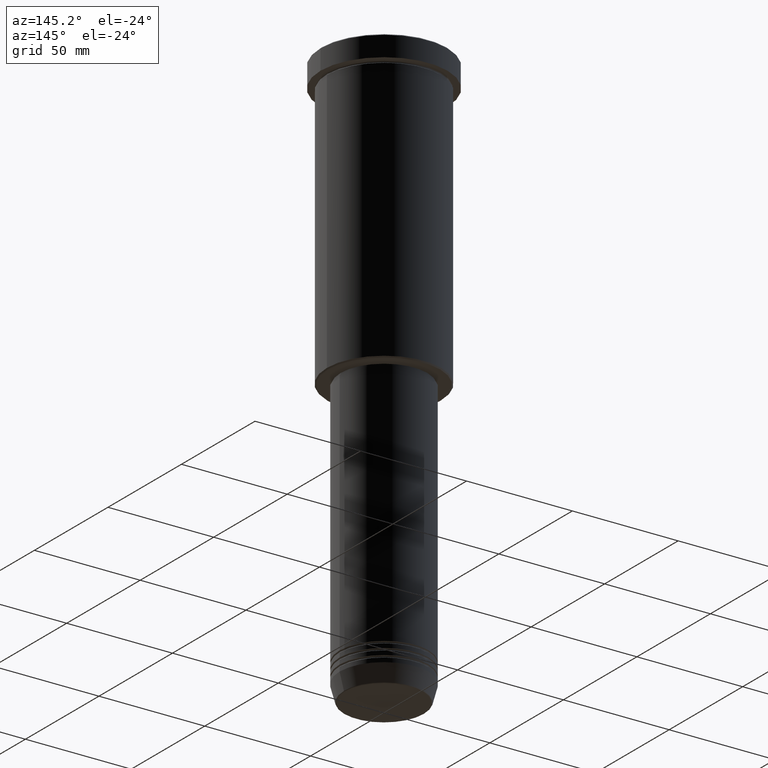
[diagram: clean part render]
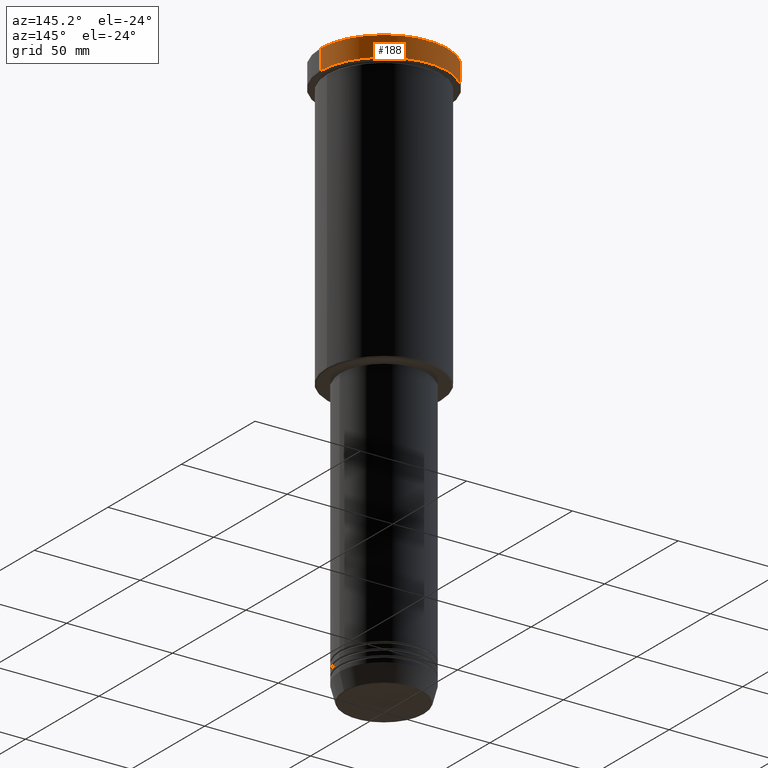
[diagram: same view with one face highlighted and labeled with its STEP entity id]
A machine part, auxiliary view. The second image highlights one B-rep face of the part: STEP entity #188.
In plain terms, the highlighted cylindrical surface (partial cylindrical patch) has radius 30 mm, axis along (-0, -0, 1).
Its self-contained STEP definition (entity closure, byte-faithful):
#23 = VERTEX_POINT ( 'NONE', #912 ) ;
#59 = CYLINDRICAL_SURFACE ( 'NONE', #1078, 30.00000000000000000 ) ;
#75 = CARTESIAN_POINT ( 'NONE',  ( 30.00000000000000000, 0.000000000000000000, -0.4999999999999796274 ) ) ;
#90 = EDGE_LOOP ( 'NONE', ( #921, #135, #847, #518 ) ) ;
#134 = DIRECTION ( 'NONE',  ( 1.000000000000000000, 0.000000000000000000, 0.000000000000000000 ) ) ;
#135 = ORIENTED_EDGE ( 'NONE', *, *, #246, .T. ) ;
#188 = ADVANCED_FACE ( 'NONE', ( #1123 ), #59, .T. ) ;
#246 = EDGE_CURVE ( 'NONE', #639, #23, #615, .T. ) ;
#309 = DIRECTION ( 'NONE',  ( -0.000000000000000000, -0.000000000000000000, 1.000000000000000000 ) ) ;
#312 = DIRECTION ( 'NONE',  ( -0.000000000000000000, -0.000000000000000000, 1.000000000000000000 ) ) ;
#357 = CARTESIAN_POINT ( 'NONE',  ( 30.00000000000000000, 0.000000000000000000, 0.000000000000000000 ) ) ;
#382 = EDGE_CURVE ( 'NONE', #23, #1160, #665, .T. ) ;
#467 = AXIS2_PLACEMENT_3D ( 'NONE', #752, #1105, #858 ) ;
#518 = ORIENTED_EDGE ( 'NONE', *, *, #1071, .F. ) ;
#615 = LINE ( 'NONE', #736, #962 ) ;
#634 = AXIS2_PLACEMENT_3D ( 'NONE', #1108, #309, #134 ) ;
#639 = VERTEX_POINT ( 'NONE', #839 ) ;
#641 = DIRECTION ( 'NONE',  ( -0.000000000000000000, -0.000000000000000000, 1.000000000000000000 ) ) ;
#665 = CIRCLE ( 'NONE', #467, 30.00000000000000000 ) ;
#710 = LINE ( 'NONE', #357, #1062 ) ;
#736 = CARTESIAN_POINT ( 'NONE',  ( -30.00000000000000000, 3.673940397442059178E-15, 0.000000000000000000 ) ) ;
#752 = CARTESIAN_POINT ( 'NONE',  ( 0.000000000000000000, 0.000000000000000000, -0.4999999999999796274 ) ) ;
#770 = DIRECTION ( 'NONE',  ( 1.000000000000000000, 0.000000000000000000, 0.000000000000000000 ) ) ;
#775 = CARTESIAN_POINT ( 'NONE',  ( 30.00000000000000000, 0.000000000000000000, -9.999999999999992895 ) ) ;
#839 = CARTESIAN_POINT ( 'NONE',  ( -30.00000000000000000, 3.673940397442059178E-15, -9.999999999999992895 ) ) ;
#847 = ORIENTED_EDGE ( 'NONE', *, *, #382, .T. ) ;
#858 = DIRECTION ( 'NONE',  ( 1.000000000000000000, 0.000000000000000000, 0.000000000000000000 ) ) ;
#864 = CARTESIAN_POINT ( 'NONE',  ( 0.000000000000000000, 0.000000000000000000, 0.000000000000000000 ) ) ;
#871 = VERTEX_POINT ( 'NONE', #775 ) ;
#912 = CARTESIAN_POINT ( 'NONE',  ( -30.00000000000000000, 3.673940397442059178E-15, -0.4999999999999796274 ) ) ;
#921 = ORIENTED_EDGE ( 'NONE', *, *, #989, .T. ) ;
#959 = DIRECTION ( 'NONE',  ( -0.000000000000000000, -0.000000000000000000, 1.000000000000000000 ) ) ;
#962 = VECTOR ( 'NONE', #641, 1000.000000000000000 ) ;
#989 = EDGE_CURVE ( 'NONE', #871, #639, #1084, .T. ) ;
#1062 = VECTOR ( 'NONE', #959, 1000.000000000000000 ) ;
#1071 = EDGE_CURVE ( 'NONE', #871, #1160, #710, .T. ) ;
#1078 = AXIS2_PLACEMENT_3D ( 'NONE', #864, #312, #770 ) ;
#1084 = CIRCLE ( 'NONE', #634, 30.00000000000000000 ) ;
#1105 = DIRECTION ( 'NONE',  ( 0.000000000000000000, 0.000000000000000000, -1.000000000000000000 ) ) ;
#1108 = CARTESIAN_POINT ( 'NONE',  ( 0.000000000000000000, 0.000000000000000000, -9.999999999999992895 ) ) ;
#1123 = FACE_OUTER_BOUND ( 'NONE', #90, .T. ) ;
#1160 = VERTEX_POINT ( 'NONE', #75 ) ;